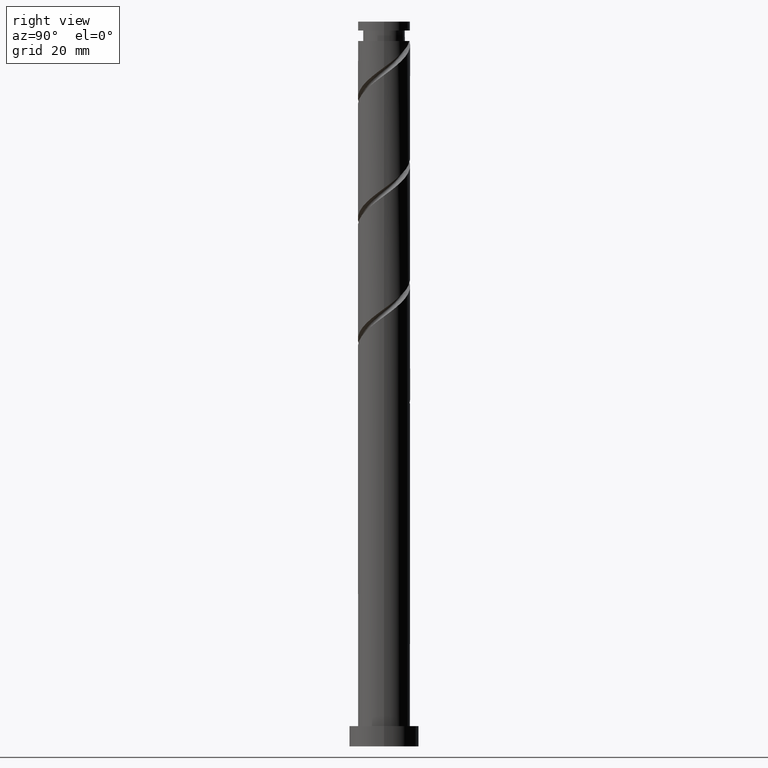
[diagram: clean part render]
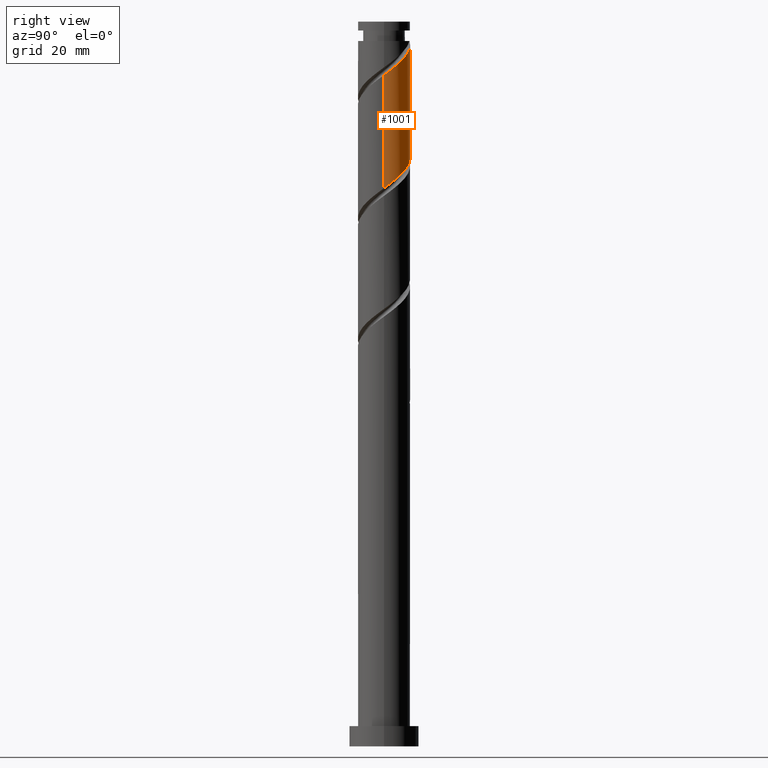
[diagram: same view with one face highlighted and labeled with its STEP entity id]
A machine part, right view. The second image highlights one B-rep face of the part: STEP entity #1001.
In plain terms, the highlighted cylindrical surface (edge-blend (fillet) strip) has radius 9 mm, axis along (-0, -0, -1).
Its self-contained STEP definition (entity closure, byte-faithful):
#42 = VERTEX_POINT ( 'NONE', #1296 ) ;
#67 = CARTESIAN_POINT ( 'NONE',  ( -7.611753926546275473, 4.802208050647887916, 209.6606462418205581 ) ) ;
#88 = CARTESIAN_POINT ( 'NONE',  ( -2.513026658482495623, 8.642030838509908719, 204.8529539341282089 ) ) ;
#91 = EDGE_CURVE ( 'NONE', #685, #1740, #501, .T. ) ;
#98 = DIRECTION ( 'NONE',  ( -0.000000000000000000, -0.000000000000000000, -1.000000000000000000 ) ) ;
#100 = CARTESIAN_POINT ( 'NONE',  ( -3.562359181962302834, 8.336894157746554512, 205.6542359854102244 ) ) ;
#115 = CARTESIAN_POINT ( 'NONE',  ( -0.7200354947715994491, 9.037464026210512813, 242.5132103443846461 ) ) ;
#141 = CARTESIAN_POINT ( 'NONE',  ( 8.705503762482029728, 2.531484027243890544, 194.4362872674615517 ) ) ;
#212 = CARTESIAN_POINT ( 'NONE',  ( 2.861919278812259382, 8.602535973789500190, 200.8465436777178752 ) ) ;
#222 = CARTESIAN_POINT ( 'NONE',  ( -6.241326581552871566, 6.484276559678926688, 208.0580821392564417 ) ) ;
#265 = CARTESIAN_POINT ( 'NONE',  ( 8.539813800928602205, 2.841052665029224933, 233.6991077802820200 ) ) ;
#280 = CARTESIAN_POINT ( 'NONE',  ( 0.3718293201155645766, 8.992315772741894975, 241.7119282931026305 ) ) ;
#348 = CARTESIAN_POINT ( 'NONE',  ( -7.028660301190702953, 5.726442308208962828, 208.8593641905384573 ) ) ;
#379 = VECTOR ( 'NONE', #98, 1000.000000000000000 ) ;
#396 = DIRECTION ( 'NONE',  ( -0.000000000000000000, -0.000000000000000000, -1.000000000000000000 ) ) ;
#407 = AXIS2_PLACEMENT_3D ( 'NONE', #1751, #875, #1433 ) ;
#410 = CARTESIAN_POINT ( 'NONE',  ( 9.000000000000019540, 0.3579581730308991072, 231.8340747687410897 ) ) ;
#449 = CARTESIAN_POINT ( 'NONE',  ( -8.884780049955320891, 1.804131536971649297, 212.0644923956666048 ) ) ;
#489 = CARTESIAN_POINT ( 'NONE',  ( -4.508176021938671063, 7.789502484447719866, 206.4555180366923253 ) ) ;
#501 =( BOUNDED_CURVE ( )  B_SPLINE_CURVE ( 2, ( #876, #1435, #1306, #449, #1492, #522, #67, #348, #222, #1356, #489, #100, #88, #1652, #1208, #1484, #955, #212, #1510, #1642, #944, #1666, #694, #1825, #1124, #141, #703, #710, #625 ),
 .UNSPECIFIED., .F., .T. ) 
 B_SPLINE_CURVE_WITH_KNOTS ( ( 3, 2, 2, 2, 2, 2, 2, 2, 2, 2, 2, 2, 2, 2, 3 ),
 ( 0.4295271625973832719, 0.4326923076923077094, 0.4423076923076922906, 0.4519230769230769273, 0.4615384615384615641, 0.4711538461538461453, 0.4807692307692307820, 0.4903846153846153633, 0.5000000000000000000, 0.5096153846153845812, 0.5192307692307692735, 0.5288461538461538547, 0.5384615384615384359, 0.5480769230769231282, 0.5545271625973833274 ),
 .UNSPECIFIED. ) 
 CURVE ( )  GEOMETRIC_REPRESENTATION_ITEM ( )  RATIONAL_B_SPLINE_CURVE ( ( 0.9061636035682715251, 0.9069090390690601744, 0.9090909090909166101, 0.9024626128164202621, 0.9090909090909166101, 0.9024626128164202621, 0.9090909090909166101, 0.9024626128164202621, 0.9090909090909166101, 0.9024626128164202621, 0.9090909090909166101, 0.9024626128164202621, 0.9090909090909166101, 0.9024626128164202621, 0.9090909090909166101, 0.9024626128164202621, 0.9090909090909166101, 0.9024626128164202621, 0.9090909090909166101, 0.9024626128164202621, 0.9090909090909166101, 0.9024626128164202621, 0.9090909090909166101, 0.9024626128164202621, 0.9090909090909166101, 0.9024626128164202621, 0.9090909090909166101, 0.9046444828382766978, 0.9061636035682715251 ) ) 
 REPRESENTATION_ITEM ( '' )  );
#503 = FACE_OUTER_BOUND ( 'NONE', #1655, .T. ) ;
#522 = CARTESIAN_POINT ( 'NONE',  ( -8.194847551901844440, 3.877973793086807675, 210.4619282931025168 ) ) ;
#556 = CARTESIAN_POINT ( 'NONE',  ( 3.562359181962313937, 8.336894157746568723, 239.3080821392564985 ) ) ;
#620 = CARTESIAN_POINT ( 'NONE',  ( -1.790977386791866577, 8.820000000000019824, 243.3144923956665764 ) ) ;
#625 = CARTESIAN_POINT ( 'NONE',  ( 9.000000000000001776, -9.272681890637864536E-15, 192.5590809382252075 ) ) ;
#655 = DIRECTION ( 'NONE',  ( -0.000000000000000000, -0.000000000000000000, -1.000000000000000000 ) ) ;
#677 = ORIENTED_EDGE ( 'NONE', *, *, #1514, .T. ) ;
#679 = CARTESIAN_POINT ( 'NONE',  ( -1.790977386791866577, 8.820000000000019824, 243.3144923956665480 ) ) ;
#685 = VERTEX_POINT ( 'NONE', #1256 ) ;
#688 = CARTESIAN_POINT ( 'NONE',  ( -9.000000000000001776, 0.000000000000000000, 250.0000000000000000 ) ) ;
#694 = CARTESIAN_POINT ( 'NONE',  ( 7.189307669428957048, 5.414227113290499105, 196.8401334213077121 ) ) ;
#698 = CARTESIAN_POINT ( 'NONE',  ( 8.194847551901862204, 3.877973793086809451, 234.5003898315641209 ) ) ;
#703 = CARTESIAN_POINT ( 'NONE',  ( 8.881932594424444716, 1.453022156782442620, 193.6350052161794792 ) ) ;
#710 = CARTESIAN_POINT ( 'NONE',  ( 9.000000000000003553, 0.7313079468334061639, 193.0987816755735480 ) ) ;
#720 = VECTOR ( 'NONE', #396, 1000.000000000000000 ) ;
#755 = EDGE_CURVE ( 'NONE', #42, #685, #1131, .T. ) ;
#776 = EDGE_CURVE ( 'NONE', #1301, #956, #896, .T. ) ;
#787 = CARTESIAN_POINT ( 'NONE',  ( 9.000000000000001776, 1.102182119232617911E-15, 250.0000000000000000 ) ) ;
#803 = CARTESIAN_POINT ( 'NONE',  ( 9.000000000000001776, -9.272681890637864536E-15, 192.5590809382252075 ) ) ;
#804 = ORIENTED_EDGE ( 'NONE', *, *, #755, .F. ) ;
#875 = DIRECTION ( 'NONE',  ( -0.000000000000000000, -0.000000000000000000, -1.000000000000000000 ) ) ;
#876 = CARTESIAN_POINT ( 'NONE',  ( -9.000000000000001776, -2.841628321324506429E-15, 213.3924142715585219 ) ) ;
#896 =( BOUNDED_CURVE ( )  B_SPLINE_CURVE ( 2, ( #979, #410, #1111, #1533, #265, #698, #1261, #995, #1660, #1267, #1829, #556, #1546, #1126, #280, #115, #679 ),
 .UNSPECIFIED., .F., .T. ) 
 B_SPLINE_CURVE_WITH_KNOTS ( ( 3, 2, 2, 2, 2, 2, 2, 2, 3 ),
 ( 0.6795271625973832164, 0.6826923076923077094, 0.6923076923076922906, 0.7019230769230769829, 0.7115384615384616751, 0.7211538461538462563, 0.7307692307692310596, 0.7403846153846156408, 0.7500000000000002220 ),
 .UNSPECIFIED. ) 
 CURVE ( )  GEOMETRIC_REPRESENTATION_ITEM ( )  RATIONAL_B_SPLINE_CURVE ( ( 0.9061636035682776313, 0.9069090390690661696, 0.9090909090909228274, 0.9024626128164262573, 0.9090909090909228274, 0.9024626128164262573, 0.9090909090909228274, 0.9024626128164262573, 0.9090909090909228274, 0.9024626128164262573, 0.9090909090909228274, 0.9024626128164262573, 0.9090909090909228274, 0.9024626128164262573, 0.9090909090909228274, 0.9024626128164261463, 0.9090909090909229384 ) ) 
 REPRESENTATION_ITEM ( '' )  );
#924 = CIRCLE ( 'NONE', #407, 8.999999999999984013 ) ;
#944 = CARTESIAN_POINT ( 'NONE',  ( 5.684690096369586776, 6.977413454012709515, 198.4426975238718285 ) ) ;
#955 = CARTESIAN_POINT ( 'NONE',  ( 1.790977386791919201, 8.820000000000000284, 201.6478257290000613 ) ) ;
#956 = VERTEX_POINT ( 'NONE', #620 ) ;
#966 = LINE ( 'NONE', #787, #379 ) ;
#979 = CARTESIAN_POINT ( 'NONE',  ( 9.000000000000010658, 4.995283470117782016E-15, 231.5699038531080873 ) ) ;
#995 = CARTESIAN_POINT ( 'NONE',  ( 7.028660301190718052, 5.726442308208966381, 236.1029539341282373 ) ) ;
#1001 = ADVANCED_FACE ( 'NONE', ( #503 ), #1332, .T. ) ;
#1111 = CARTESIAN_POINT ( 'NONE',  ( 8.971570738161103620, 0.7147856253253245251, 232.0965436777179889 ) ) ;
#1124 = CARTESIAN_POINT ( 'NONE',  ( 8.276108812811230564, 3.536385572658662380, 195.2375693187436241 ) ) ;
#1126 = CARTESIAN_POINT ( 'NONE',  ( 1.463694135002694852, 8.947167519273277136, 240.9106462418205012 ) ) ;
#1131 = LINE ( 'NONE', #688, #720 ) ;
#1165 = ORIENTED_EDGE ( 'NONE', *, *, #91, .F. ) ;
#1208 = CARTESIAN_POINT ( 'NONE',  ( -0.3718293201155540850, 8.992315772741880764, 203.2503898315640924 ) ) ;
#1210 = CARTESIAN_POINT ( 'NONE',  ( 0.000000000000000000, 0.000000000000000000, 250.0000000000000000 ) ) ;
#1256 = CARTESIAN_POINT ( 'NONE',  ( -9.000000000000001776, -2.841628321324506429E-15, 213.3924142715585219 ) ) ;
#1261 = CARTESIAN_POINT ( 'NONE',  ( 7.611753926546287907, 4.802208050647890580, 235.3016718828461364 ) ) ;
#1267 = CARTESIAN_POINT ( 'NONE',  ( 5.453992861915056167, 7.242110811148891436, 237.7055180366922684 ) ) ;
#1296 = CARTESIAN_POINT ( 'NONE',  ( -8.999999999999984013, 0.000000000000000000, 243.3144923956666617 ) ) ;
#1301 = VERTEX_POINT ( 'NONE', #1473 ) ;
#1306 = CARTESIAN_POINT ( 'NONE',  ( -8.971570738161089409, 0.7147856253253311865, 212.8657744469487056 ) ) ;
#1332 = CYLINDRICAL_SURFACE ( 'NONE', #1537, 9.000000000000001776 ) ;
#1356 = CARTESIAN_POINT ( 'NONE',  ( -5.453992861915038404, 7.242110811148885219, 207.2568000879743693 ) ) ;
#1383 = EDGE_CURVE ( 'NONE', #42, #956, #924, .T. ) ;
#1390 = ORIENTED_EDGE ( 'NONE', *, *, #1383, .T. ) ;
#1433 = DIRECTION ( 'NONE',  ( -1.000000000000000000, 0.000000000000000000, 0.000000000000000000 ) ) ;
#1435 = CARTESIAN_POINT ( 'NONE',  ( -9.000000000000000000, 0.3579581730309125964, 213.1282433559255480 ) ) ;
#1473 = CARTESIAN_POINT ( 'NONE',  ( 9.000000000000012434, 4.995283470117782016E-15, 231.5699038531080873 ) ) ;
#1484 = CARTESIAN_POINT ( 'NONE',  ( 0.7200354947715791321, 9.037464026210495049, 202.4491077802820485 ) ) ;
#1492 = CARTESIAN_POINT ( 'NONE',  ( -8.539813800928586218, 2.841052665029229818, 211.2632103443846461 ) ) ;
#1510 = CARTESIAN_POINT ( 'NONE',  ( 3.849698997916973564, 8.135097886653674948, 200.0452616264358880 ) ) ;
#1514 = EDGE_CURVE ( 'NONE', #1301, #1740, #966, .T. ) ;
#1533 = CARTESIAN_POINT ( 'NONE',  ( 8.884780049955336878, 1.804131536971648631, 232.8978257290000329 ) ) ;
#1537 = AXIS2_PLACEMENT_3D ( 'NONE', #1210, #655, #1775 ) ;
#1546 = CARTESIAN_POINT ( 'NONE',  ( 2.513026658482507614, 8.642030838509921153, 240.1093641905385141 ) ) ;
#1588 = ORIENTED_EDGE ( 'NONE', *, *, #776, .F. ) ;
#1642 = CARTESIAN_POINT ( 'NONE',  ( 4.837478717021677532, 7.667659799517847929, 199.2439795751537872 ) ) ;
#1652 = CARTESIAN_POINT ( 'NONE',  ( -1.463694135002686414, 8.947167519273266478, 204.0516718828461080 ) ) ;
#1655 = EDGE_LOOP ( 'NONE', ( #1588, #677, #1165, #804, #1390 ) ) ;
#1660 = CARTESIAN_POINT ( 'NONE',  ( 6.241326581552884889, 6.484276559678933793, 236.9042359854102813 ) ) ;
#1666 = CARTESIAN_POINT ( 'NONE',  ( 6.531901475717488026, 6.287167108507572877, 197.6414154725896992 ) ) ;
#1740 = VERTEX_POINT ( 'NONE', #803 ) ;
#1751 = CARTESIAN_POINT ( 'NONE',  ( 0.000000000000000000, 0.000000000000000000, 243.3144923956666617 ) ) ;
#1775 = DIRECTION ( 'NONE',  ( -1.000000000000000000, 0.000000000000000000, 0.000000000000000000 ) ) ;
#1825 = CARTESIAN_POINT ( 'NONE',  ( 7.846713863140425183, 4.541287118073422668, 196.0388513700255828 ) ) ;
#1829 = CARTESIAN_POINT ( 'NONE',  ( 4.508176021938684386, 7.789502484447732300, 238.5068000879743408 ) ) ;